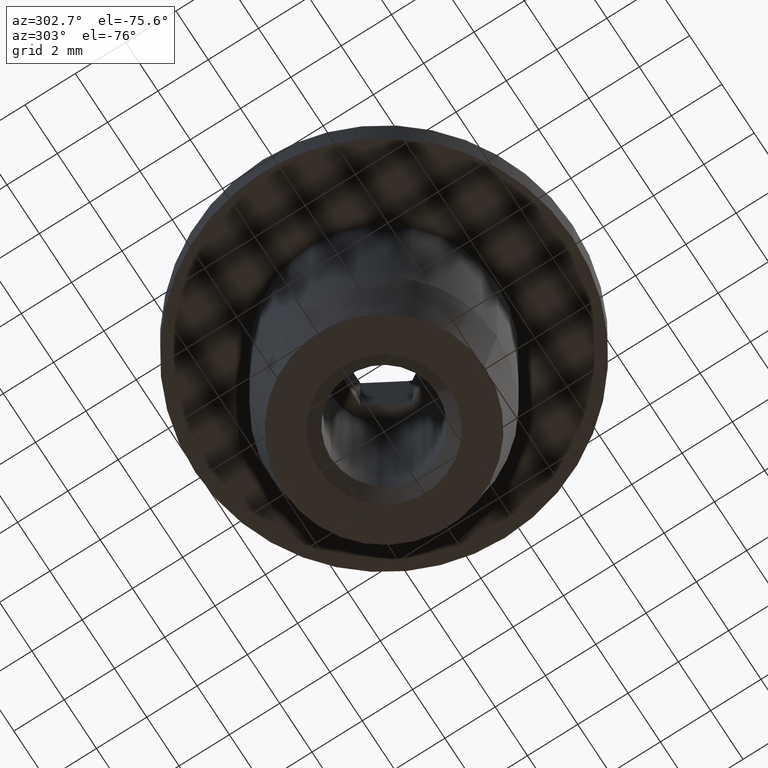
[diagram: clean part render]
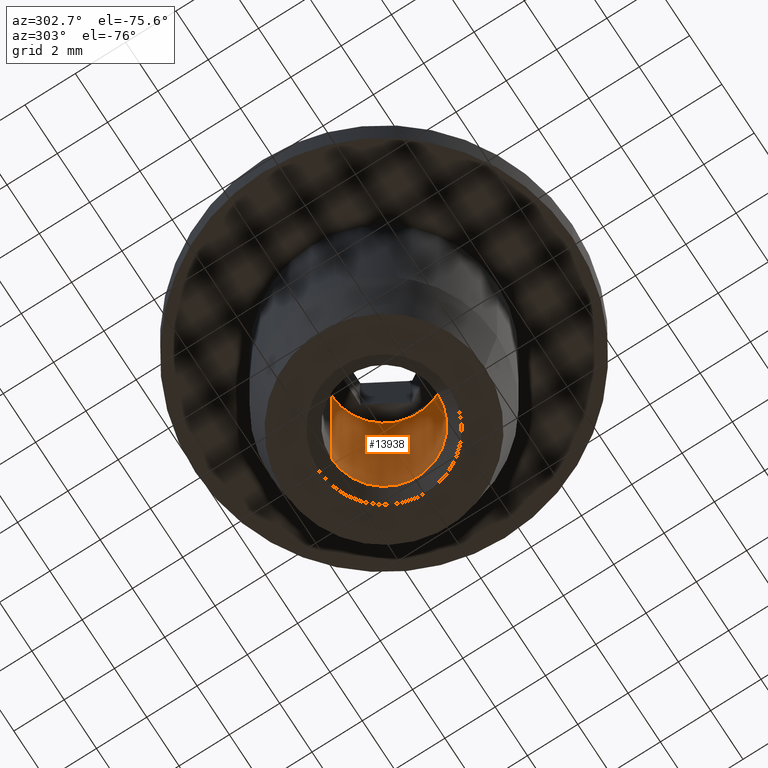
[diagram: same view with one face highlighted and labeled with its STEP entity id]
A machine part, auxiliary view. The second image highlights one B-rep face of the part: STEP entity #13938.
In plain terms, the highlighted cylindrical surface (partial cylindrical patch) has radius 2.1 mm, axis along (-0, 0, -1).
Its self-contained STEP definition (entity closure, byte-faithful):
#460 = DIRECTION ( 'NONE',  ( 0.0000000000000000000, 1.000000000000000000, 4.130293990420974300E-016 ) ) ;
#508 = EDGE_CURVE ( 'NONE', #12727, #10580, #9696, .T. ) ;
#806 = EDGE_CURVE ( 'NONE', #14613, #12727, #8694, .T. ) ;
#2019 = CARTESIAN_POINT ( 'NONE',  ( 2.571758278209438500E-016, -2.099999999999997000, 2.899999999999999000 ) ) ;
#2106 = DIRECTION ( 'NONE',  ( 0.0000000000000000000, 1.000000000000000000, 4.130293990420971900E-016 ) ) ;
#2991 = EDGE_CURVE ( 'NONE', #14597, #10580, #16304, .T. ) ;
#3214 = CARTESIAN_POINT ( 'NONE',  ( 0.0000000000000000000, 2.778116611792250500E-016, 2.899999999999999900 ) ) ;
#3789 = CARTESIAN_POINT ( 'NONE',  ( 2.571758278209440000E-016, -2.099999999999994800, -5.600000000000005000 ) ) ;
#3931 = VECTOR ( 'NONE', #14184, 1000.000000000000000 ) ;
#4223 = DIRECTION ( 'NONE',  ( -0.0000000000000000000, 4.060685641161864400E-016, -1.000000000000000000 ) ) ;
#4664 = DIRECTION ( 'NONE',  ( 0.0000000000000000000, 4.060685641161860000E-016, -1.000000000000000000 ) ) ;
#4994 = ORIENTED_EDGE ( 'NONE', *, *, #2991, .F. ) ;
#5480 = DIRECTION ( 'NONE',  ( 0.0000000000000000000, 1.000000000000000000, 4.130293990420971900E-016 ) ) ;
#6573 = AXIS2_PLACEMENT_3D ( 'NONE', #9210, #4223, #5480 ) ;
#7330 = ORIENTED_EDGE ( 'NONE', *, *, #9885, .F. ) ;
#8694 = LINE ( 'NONE', #11679, #3931 ) ;
#8977 = FACE_OUTER_BOUND ( 'NONE', #13551, .T. ) ;
#9210 = CARTESIAN_POINT ( 'NONE',  ( 0.0000000000000000000, 3.932428738224903700E-015, -6.100000000000001400 ) ) ;
#9696 = CIRCLE ( 'NONE', #9908, 2.099999999999998800 ) ;
#9885 = EDGE_CURVE ( 'NONE', #14613, #14597, #14361, .T. ) ;
#9908 = AXIS2_PLACEMENT_3D ( 'NONE', #10813, #4664, #2106 ) ;
#9933 = VECTOR ( 'NONE', #10460, 1000.000000000000000 ) ;
#10191 = CYLINDRICAL_SURFACE ( 'NONE', #6573, 2.099999999999998800 ) ;
#10459 = ORIENTED_EDGE ( 'NONE', *, *, #508, .T. ) ;
#10460 = DIRECTION ( 'NONE',  ( -0.0000000000000000000, 4.060685641161864400E-016, -1.000000000000000000 ) ) ;
#10580 = VERTEX_POINT ( 'NONE', #3789 ) ;
#10813 = CARTESIAN_POINT ( 'NONE',  ( 0.0000000000000000000, 3.729394456166811700E-015, -5.600000000000004100 ) ) ;
#11465 = CARTESIAN_POINT ( 'NONE',  ( 0.0000000000000000000, 2.100000000000002300, -5.600000000000003200 ) ) ;
#11679 = CARTESIAN_POINT ( 'NONE',  ( 0.0000000000000000000, 2.100000000000002300, -6.100000000000000500 ) ) ;
#12727 = VERTEX_POINT ( 'NONE', #11465 ) ;
#13551 = EDGE_LOOP ( 'NONE', ( #4994, #7330, #14753, #10459 ) ) ;
#13938 = ADVANCED_FACE ( 'NONE', ( #8977 ), #10191, .F. ) ;
#14184 = DIRECTION ( 'NONE',  ( -0.0000000000000000000, 4.060685641161864400E-016, -1.000000000000000000 ) ) ;
#14249 = CARTESIAN_POINT ( 'NONE',  ( 2.571758278209440000E-016, -2.099999999999994800, -6.100000000000002300 ) ) ;
#14361 = CIRCLE ( 'NONE', #14783, 2.099999999999997400 ) ;
#14536 = DIRECTION ( 'NONE',  ( -0.0000000000000000000, 4.060685641161864400E-016, -1.000000000000000000 ) ) ;
#14597 = VERTEX_POINT ( 'NONE', #2019 ) ;
#14613 = VERTEX_POINT ( 'NONE', #14928 ) ;
#14753 = ORIENTED_EDGE ( 'NONE', *, *, #806, .T. ) ;
#14783 = AXIS2_PLACEMENT_3D ( 'NONE', #3214, #14536, #460 ) ;
#14928 = CARTESIAN_POINT ( 'NONE',  ( 0.0000000000000000000, 2.099999999999997900, 2.900000000000000800 ) ) ;
#16304 = LINE ( 'NONE', #14249, #9933 ) ;